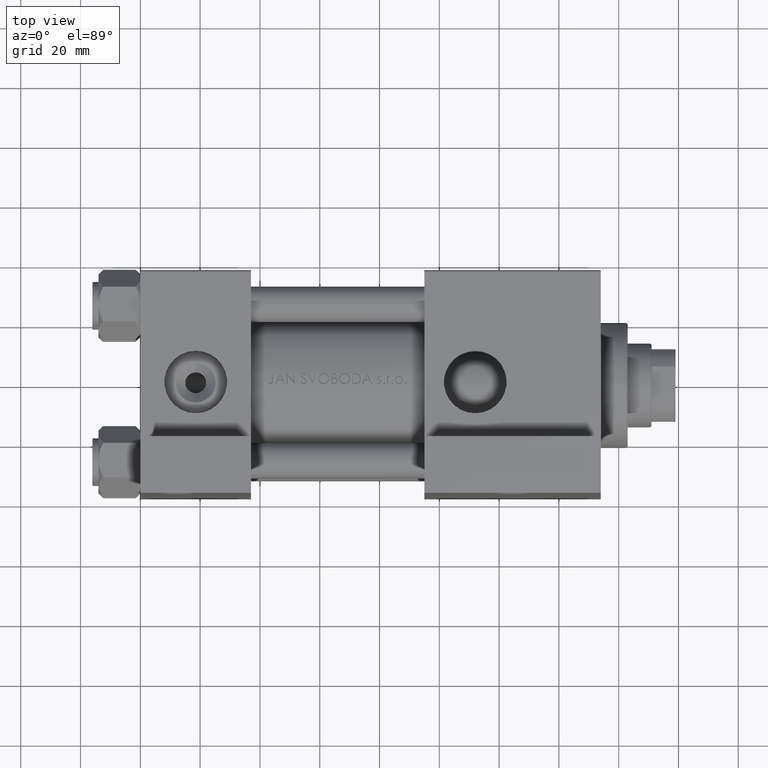
[diagram: clean part render]
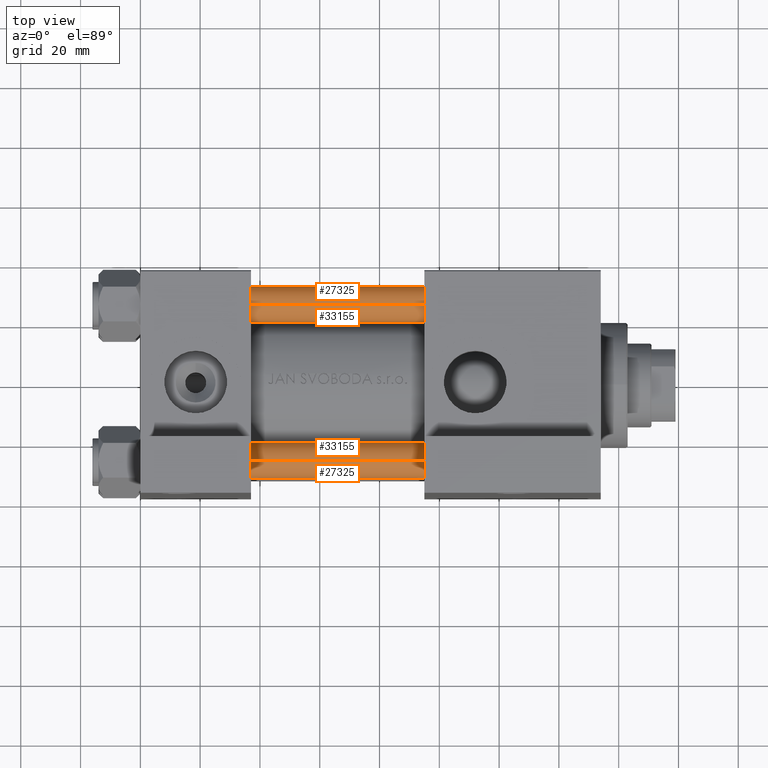
[diagram: same view with one multi-face feature highlighted, each face labeled with its STEP entity id]
A machine part, top view. The highlighted faces form ONE feature: a constant-radius fillet chain: 4 tangent blend faces with common blend radius 6 mm. The faces share edges in the B-rep.
Their STEP definitions:
[1] entity #33155 (Cylinder):
#1535 = CARTESIAN_POINT ( 'NONE',  ( -6.000000000000000888, 0.000000000000000000, 124.0000000000000000 ) ) ;
#2683 = DIRECTION ( 'NONE',  ( -0.000000000000000000, -0.000000000000000000, -1.000000000000000000 ) ) ;
#3108 = DIRECTION ( 'NONE',  ( -0.000000000000000000, -0.000000000000000000, 1.000000000000000000 ) ) ;
#3782 = AXIS2_PLACEMENT_3D ( 'NONE', #24752, #3108, #39445 ) ;
#4118 = CARTESIAN_POINT ( 'NONE',  ( 6.000000000000000888, 7.347880794884120722E-16, 123.5000000000000426 ) ) ;
#4155 = DIRECTION ( 'NONE',  ( -0.000000000000000000, -0.000000000000000000, -1.000000000000000000 ) ) ;
#4460 = DIRECTION ( 'NONE',  ( 1.000000000000000000, 0.000000000000000000, 0.000000000000000000 ) ) ;
#4469 = CARTESIAN_POINT ( 'NONE',  ( -6.000000000000000888, 0.000000000000000000, 0.4999999999999865663 ) ) ;
#6132 = AXIS2_PLACEMENT_3D ( 'NONE', #22744, #26609, #4460 ) ;
#6382 = EDGE_CURVE ( 'NONE', #30363, #17724, #34526, .T. ) ;
#10444 = EDGE_CURVE ( 'NONE', #29929, #30363, #17636, .T. ) ;
#13805 = FACE_OUTER_BOUND ( 'NONE', #35291, .T. ) ;
#16349 = DIRECTION ( 'NONE',  ( -1.000000000000000000, 0.000000000000000000, 0.000000000000000000 ) ) ;
#16851 = CIRCLE ( 'NONE', #3782, 6.000000000000000888 ) ;
#17636 = CIRCLE ( 'NONE', #6132, 6.000000000000000888 ) ;
#17724 = VERTEX_POINT ( 'NONE', #4469 ) ;
#20968 = LINE ( 'NONE', #39742, #30697 ) ;
#21265 = ORIENTED_EDGE ( 'NONE', *, *, #10444, .T. ) ;
#22154 = EDGE_CURVE ( 'NONE', #29929, #45350, #20968, .T. ) ;
#22422 = EDGE_CURVE ( 'NONE', #17724, #45350, #16851, .T. ) ;
#22744 = CARTESIAN_POINT ( 'NONE',  ( 0.000000000000000000, 0.000000000000000000, 123.5000000000000426 ) ) ;
#24752 = CARTESIAN_POINT ( 'NONE',  ( 0.000000000000000000, 0.000000000000000000, 0.4999999999999865663 ) ) ;
#26609 = DIRECTION ( 'NONE',  ( 0.000000000000000000, 0.000000000000000000, -1.000000000000000000 ) ) ;
#29929 = VERTEX_POINT ( 'NONE', #4118 ) ;
#30224 = ORIENTED_EDGE ( 'NONE', *, *, #22154, .F. ) ;
#30363 = VERTEX_POINT ( 'NONE', #42061 ) ;
#30697 = VECTOR ( 'NONE', #2683, 1000.000000000000000 ) ;
#32331 = CYLINDRICAL_SURFACE ( 'NONE', #32420, 6.000000000000000888 ) ;
#32420 = AXIS2_PLACEMENT_3D ( 'NONE', #46982, #4155, #16349 ) ;
#33155 = ADVANCED_FACE ( 'NONE', ( #13805 ), #32331, .T. ) ;
#34526 = LINE ( 'NONE', #1535, #47491 ) ;
#35001 = DIRECTION ( 'NONE',  ( -0.000000000000000000, -0.000000000000000000, -1.000000000000000000 ) ) ;
#35291 = EDGE_LOOP ( 'NONE', ( #30224, #21265, #41476, #40280 ) ) ;
#39445 = DIRECTION ( 'NONE',  ( 1.000000000000000000, 0.000000000000000000, 0.000000000000000000 ) ) ;
#39742 = CARTESIAN_POINT ( 'NONE',  ( 6.000000000000000888, 7.347880794884120722E-16, 124.0000000000000000 ) ) ;
#40280 = ORIENTED_EDGE ( 'NONE', *, *, #22422, .T. ) ;
#41242 = CARTESIAN_POINT ( 'NONE',  ( 6.000000000000000888, 7.347880794884120722E-16, 0.4999999999999865663 ) ) ;
#41476 = ORIENTED_EDGE ( 'NONE', *, *, #6382, .T. ) ;
#42061 = CARTESIAN_POINT ( 'NONE',  ( -6.000000000000000888, 0.000000000000000000, 123.5000000000000426 ) ) ;
#45350 = VERTEX_POINT ( 'NONE', #41242 ) ;
#46982 = CARTESIAN_POINT ( 'NONE',  ( 0.000000000000000000, 0.000000000000000000, 124.0000000000000000 ) ) ;
#47491 = VECTOR ( 'NONE', #35001, 1000.000000000000000 ) ;
[2] entity #27325 (Cylinder):
#179 = DIRECTION ( 'NONE',  ( -0.000000000000000000, -0.000000000000000000, 1.000000000000000000 ) ) ;
#1535 = CARTESIAN_POINT ( 'NONE',  ( -6.000000000000000888, 0.000000000000000000, 124.0000000000000000 ) ) ;
#2683 = DIRECTION ( 'NONE',  ( -0.000000000000000000, -0.000000000000000000, -1.000000000000000000 ) ) ;
#4118 = CARTESIAN_POINT ( 'NONE',  ( 6.000000000000000888, 7.347880794884120722E-16, 123.5000000000000426 ) ) ;
#4469 = CARTESIAN_POINT ( 'NONE',  ( -6.000000000000000888, 0.000000000000000000, 0.4999999999999865663 ) ) ;
#6382 = EDGE_CURVE ( 'NONE', #30363, #17724, #34526, .T. ) ;
#6566 = CARTESIAN_POINT ( 'NONE',  ( 0.000000000000000000, 0.000000000000000000, 124.0000000000000000 ) ) ;
#7633 = DIRECTION ( 'NONE',  ( 1.000000000000000000, 0.000000000000000000, 0.000000000000000000 ) ) ;
#8281 = AXIS2_PLACEMENT_3D ( 'NONE', #37004, #179, #7633 ) ;
#12173 = ORIENTED_EDGE ( 'NONE', *, *, #19154, .T. ) ;
#17359 = DIRECTION ( 'NONE',  ( 0.000000000000000000, 0.000000000000000000, -1.000000000000000000 ) ) ;
#17595 = CARTESIAN_POINT ( 'NONE',  ( 0.000000000000000000, 0.000000000000000000, 123.5000000000000426 ) ) ;
#17656 = ORIENTED_EDGE ( 'NONE', *, *, #6382, .F. ) ;
#17724 = VERTEX_POINT ( 'NONE', #4469 ) ;
#19154 = EDGE_CURVE ( 'NONE', #45350, #17724, #38285, .T. ) ;
#20893 = ORIENTED_EDGE ( 'NONE', *, *, #22096, .T. ) ;
#20968 = LINE ( 'NONE', #39742, #30697 ) ;
#22096 = EDGE_CURVE ( 'NONE', #30363, #29929, #26853, .T. ) ;
#22154 = EDGE_CURVE ( 'NONE', #29929, #45350, #20968, .T. ) ;
#25058 = DIRECTION ( 'NONE',  ( 1.000000000000000000, 0.000000000000000000, 0.000000000000000000 ) ) ;
#25098 = DIRECTION ( 'NONE',  ( -1.000000000000000000, 0.000000000000000000, 0.000000000000000000 ) ) ;
#26093 = AXIS2_PLACEMENT_3D ( 'NONE', #17595, #17359, #25058 ) ;
#26853 = CIRCLE ( 'NONE', #26093, 6.000000000000000888 ) ;
#27325 = ADVANCED_FACE ( 'NONE', ( #28949 ), #39546, .T. ) ;
#28949 = FACE_OUTER_BOUND ( 'NONE', #40956, .T. ) ;
#29834 = ORIENTED_EDGE ( 'NONE', *, *, #22154, .T. ) ;
#29929 = VERTEX_POINT ( 'NONE', #4118 ) ;
#30363 = VERTEX_POINT ( 'NONE', #42061 ) ;
#30697 = VECTOR ( 'NONE', #2683, 1000.000000000000000 ) ;
#34526 = LINE ( 'NONE', #1535, #47491 ) ;
#35001 = DIRECTION ( 'NONE',  ( -0.000000000000000000, -0.000000000000000000, -1.000000000000000000 ) ) ;
#37004 = CARTESIAN_POINT ( 'NONE',  ( 0.000000000000000000, 0.000000000000000000, 0.4999999999999865663 ) ) ;
#38285 = CIRCLE ( 'NONE', #8281, 6.000000000000000888 ) ;
#39546 = CYLINDRICAL_SURFACE ( 'NONE', #45303, 6.000000000000000888 ) ;
#39742 = CARTESIAN_POINT ( 'NONE',  ( 6.000000000000000888, 7.347880794884120722E-16, 124.0000000000000000 ) ) ;
#40956 = EDGE_LOOP ( 'NONE', ( #20893, #29834, #12173, #17656 ) ) ;
#41242 = CARTESIAN_POINT ( 'NONE',  ( 6.000000000000000888, 7.347880794884120722E-16, 0.4999999999999865663 ) ) ;
#42061 = CARTESIAN_POINT ( 'NONE',  ( -6.000000000000000888, 0.000000000000000000, 123.5000000000000426 ) ) ;
#43615 = DIRECTION ( 'NONE',  ( -0.000000000000000000, -0.000000000000000000, -1.000000000000000000 ) ) ;
#45303 = AXIS2_PLACEMENT_3D ( 'NONE', #6566, #43615, #25098 ) ;
#45350 = VERTEX_POINT ( 'NONE', #41242 ) ;
#47491 = VECTOR ( 'NONE', #35001, 1000.000000000000000 ) ;
[3] entity #33155 (Cylinder):
#1535 = CARTESIAN_POINT ( 'NONE',  ( -6.000000000000000888, 0.000000000000000000, 124.0000000000000000 ) ) ;
#2683 = DIRECTION ( 'NONE',  ( -0.000000000000000000, -0.000000000000000000, -1.000000000000000000 ) ) ;
#3108 = DIRECTION ( 'NONE',  ( -0.000000000000000000, -0.000000000000000000, 1.000000000000000000 ) ) ;
#3782 = AXIS2_PLACEMENT_3D ( 'NONE', #24752, #3108, #39445 ) ;
#4118 = CARTESIAN_POINT ( 'NONE',  ( 6.000000000000000888, 7.347880794884120722E-16, 123.5000000000000426 ) ) ;
#4155 = DIRECTION ( 'NONE',  ( -0.000000000000000000, -0.000000000000000000, -1.000000000000000000 ) ) ;
#4460 = DIRECTION ( 'NONE',  ( 1.000000000000000000, 0.000000000000000000, 0.000000000000000000 ) ) ;
#4469 = CARTESIAN_POINT ( 'NONE',  ( -6.000000000000000888, 0.000000000000000000, 0.4999999999999865663 ) ) ;
#6132 = AXIS2_PLACEMENT_3D ( 'NONE', #22744, #26609, #4460 ) ;
#6382 = EDGE_CURVE ( 'NONE', #30363, #17724, #34526, .T. ) ;
#10444 = EDGE_CURVE ( 'NONE', #29929, #30363, #17636, .T. ) ;
#13805 = FACE_OUTER_BOUND ( 'NONE', #35291, .T. ) ;
#16349 = DIRECTION ( 'NONE',  ( -1.000000000000000000, 0.000000000000000000, 0.000000000000000000 ) ) ;
#16851 = CIRCLE ( 'NONE', #3782, 6.000000000000000888 ) ;
#17636 = CIRCLE ( 'NONE', #6132, 6.000000000000000888 ) ;
#17724 = VERTEX_POINT ( 'NONE', #4469 ) ;
#20968 = LINE ( 'NONE', #39742, #30697 ) ;
#21265 = ORIENTED_EDGE ( 'NONE', *, *, #10444, .T. ) ;
#22154 = EDGE_CURVE ( 'NONE', #29929, #45350, #20968, .T. ) ;
#22422 = EDGE_CURVE ( 'NONE', #17724, #45350, #16851, .T. ) ;
#22744 = CARTESIAN_POINT ( 'NONE',  ( 0.000000000000000000, 0.000000000000000000, 123.5000000000000426 ) ) ;
#24752 = CARTESIAN_POINT ( 'NONE',  ( 0.000000000000000000, 0.000000000000000000, 0.4999999999999865663 ) ) ;
#26609 = DIRECTION ( 'NONE',  ( 0.000000000000000000, 0.000000000000000000, -1.000000000000000000 ) ) ;
#29929 = VERTEX_POINT ( 'NONE', #4118 ) ;
#30224 = ORIENTED_EDGE ( 'NONE', *, *, #22154, .F. ) ;
#30363 = VERTEX_POINT ( 'NONE', #42061 ) ;
#30697 = VECTOR ( 'NONE', #2683, 1000.000000000000000 ) ;
#32331 = CYLINDRICAL_SURFACE ( 'NONE', #32420, 6.000000000000000888 ) ;
#32420 = AXIS2_PLACEMENT_3D ( 'NONE', #46982, #4155, #16349 ) ;
#33155 = ADVANCED_FACE ( 'NONE', ( #13805 ), #32331, .T. ) ;
#34526 = LINE ( 'NONE', #1535, #47491 ) ;
#35001 = DIRECTION ( 'NONE',  ( -0.000000000000000000, -0.000000000000000000, -1.000000000000000000 ) ) ;
#35291 = EDGE_LOOP ( 'NONE', ( #30224, #21265, #41476, #40280 ) ) ;
#39445 = DIRECTION ( 'NONE',  ( 1.000000000000000000, 0.000000000000000000, 0.000000000000000000 ) ) ;
#39742 = CARTESIAN_POINT ( 'NONE',  ( 6.000000000000000888, 7.347880794884120722E-16, 124.0000000000000000 ) ) ;
#40280 = ORIENTED_EDGE ( 'NONE', *, *, #22422, .T. ) ;
#41242 = CARTESIAN_POINT ( 'NONE',  ( 6.000000000000000888, 7.347880794884120722E-16, 0.4999999999999865663 ) ) ;
#41476 = ORIENTED_EDGE ( 'NONE', *, *, #6382, .T. ) ;
#42061 = CARTESIAN_POINT ( 'NONE',  ( -6.000000000000000888, 0.000000000000000000, 123.5000000000000426 ) ) ;
#45350 = VERTEX_POINT ( 'NONE', #41242 ) ;
#46982 = CARTESIAN_POINT ( 'NONE',  ( 0.000000000000000000, 0.000000000000000000, 124.0000000000000000 ) ) ;
#47491 = VECTOR ( 'NONE', #35001, 1000.000000000000000 ) ;
[4] entity #27325 (Cylinder):
#179 = DIRECTION ( 'NONE',  ( -0.000000000000000000, -0.000000000000000000, 1.000000000000000000 ) ) ;
#1535 = CARTESIAN_POINT ( 'NONE',  ( -6.000000000000000888, 0.000000000000000000, 124.0000000000000000 ) ) ;
#2683 = DIRECTION ( 'NONE',  ( -0.000000000000000000, -0.000000000000000000, -1.000000000000000000 ) ) ;
#4118 = CARTESIAN_POINT ( 'NONE',  ( 6.000000000000000888, 7.347880794884120722E-16, 123.5000000000000426 ) ) ;
#4469 = CARTESIAN_POINT ( 'NONE',  ( -6.000000000000000888, 0.000000000000000000, 0.4999999999999865663 ) ) ;
#6382 = EDGE_CURVE ( 'NONE', #30363, #17724, #34526, .T. ) ;
#6566 = CARTESIAN_POINT ( 'NONE',  ( 0.000000000000000000, 0.000000000000000000, 124.0000000000000000 ) ) ;
#7633 = DIRECTION ( 'NONE',  ( 1.000000000000000000, 0.000000000000000000, 0.000000000000000000 ) ) ;
#8281 = AXIS2_PLACEMENT_3D ( 'NONE', #37004, #179, #7633 ) ;
#12173 = ORIENTED_EDGE ( 'NONE', *, *, #19154, .T. ) ;
#17359 = DIRECTION ( 'NONE',  ( 0.000000000000000000, 0.000000000000000000, -1.000000000000000000 ) ) ;
#17595 = CARTESIAN_POINT ( 'NONE',  ( 0.000000000000000000, 0.000000000000000000, 123.5000000000000426 ) ) ;
#17656 = ORIENTED_EDGE ( 'NONE', *, *, #6382, .F. ) ;
#17724 = VERTEX_POINT ( 'NONE', #4469 ) ;
#19154 = EDGE_CURVE ( 'NONE', #45350, #17724, #38285, .T. ) ;
#20893 = ORIENTED_EDGE ( 'NONE', *, *, #22096, .T. ) ;
#20968 = LINE ( 'NONE', #39742, #30697 ) ;
#22096 = EDGE_CURVE ( 'NONE', #30363, #29929, #26853, .T. ) ;
#22154 = EDGE_CURVE ( 'NONE', #29929, #45350, #20968, .T. ) ;
#25058 = DIRECTION ( 'NONE',  ( 1.000000000000000000, 0.000000000000000000, 0.000000000000000000 ) ) ;
#25098 = DIRECTION ( 'NONE',  ( -1.000000000000000000, 0.000000000000000000, 0.000000000000000000 ) ) ;
#26093 = AXIS2_PLACEMENT_3D ( 'NONE', #17595, #17359, #25058 ) ;
#26853 = CIRCLE ( 'NONE', #26093, 6.000000000000000888 ) ;
#27325 = ADVANCED_FACE ( 'NONE', ( #28949 ), #39546, .T. ) ;
#28949 = FACE_OUTER_BOUND ( 'NONE', #40956, .T. ) ;
#29834 = ORIENTED_EDGE ( 'NONE', *, *, #22154, .T. ) ;
#29929 = VERTEX_POINT ( 'NONE', #4118 ) ;
#30363 = VERTEX_POINT ( 'NONE', #42061 ) ;
#30697 = VECTOR ( 'NONE', #2683, 1000.000000000000000 ) ;
#34526 = LINE ( 'NONE', #1535, #47491 ) ;
#35001 = DIRECTION ( 'NONE',  ( -0.000000000000000000, -0.000000000000000000, -1.000000000000000000 ) ) ;
#37004 = CARTESIAN_POINT ( 'NONE',  ( 0.000000000000000000, 0.000000000000000000, 0.4999999999999865663 ) ) ;
#38285 = CIRCLE ( 'NONE', #8281, 6.000000000000000888 ) ;
#39546 = CYLINDRICAL_SURFACE ( 'NONE', #45303, 6.000000000000000888 ) ;
#39742 = CARTESIAN_POINT ( 'NONE',  ( 6.000000000000000888, 7.347880794884120722E-16, 124.0000000000000000 ) ) ;
#40956 = EDGE_LOOP ( 'NONE', ( #20893, #29834, #12173, #17656 ) ) ;
#41242 = CARTESIAN_POINT ( 'NONE',  ( 6.000000000000000888, 7.347880794884120722E-16, 0.4999999999999865663 ) ) ;
#42061 = CARTESIAN_POINT ( 'NONE',  ( -6.000000000000000888, 0.000000000000000000, 123.5000000000000426 ) ) ;
#43615 = DIRECTION ( 'NONE',  ( -0.000000000000000000, -0.000000000000000000, -1.000000000000000000 ) ) ;
#45303 = AXIS2_PLACEMENT_3D ( 'NONE', #6566, #43615, #25098 ) ;
#45350 = VERTEX_POINT ( 'NONE', #41242 ) ;
#47491 = VECTOR ( 'NONE', #35001, 1000.000000000000000 ) ;